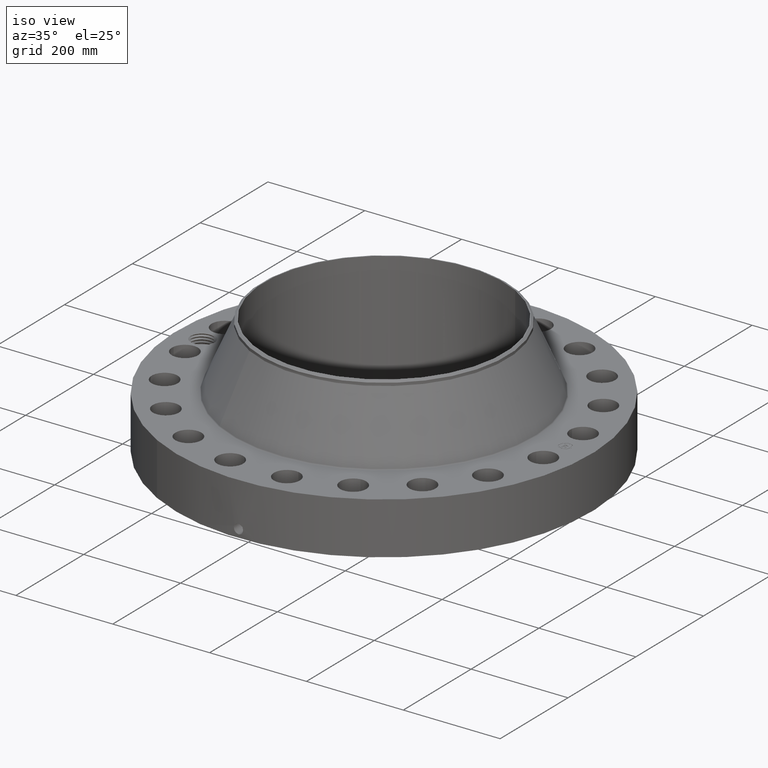
[diagram: clean part render]
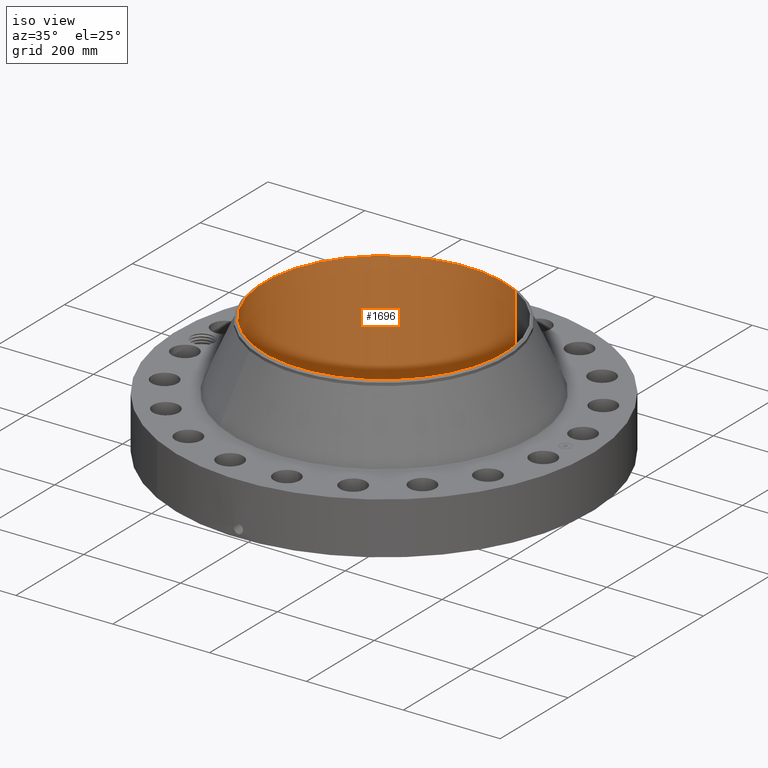
[diagram: same view with one face highlighted and labeled with its STEP entity id]
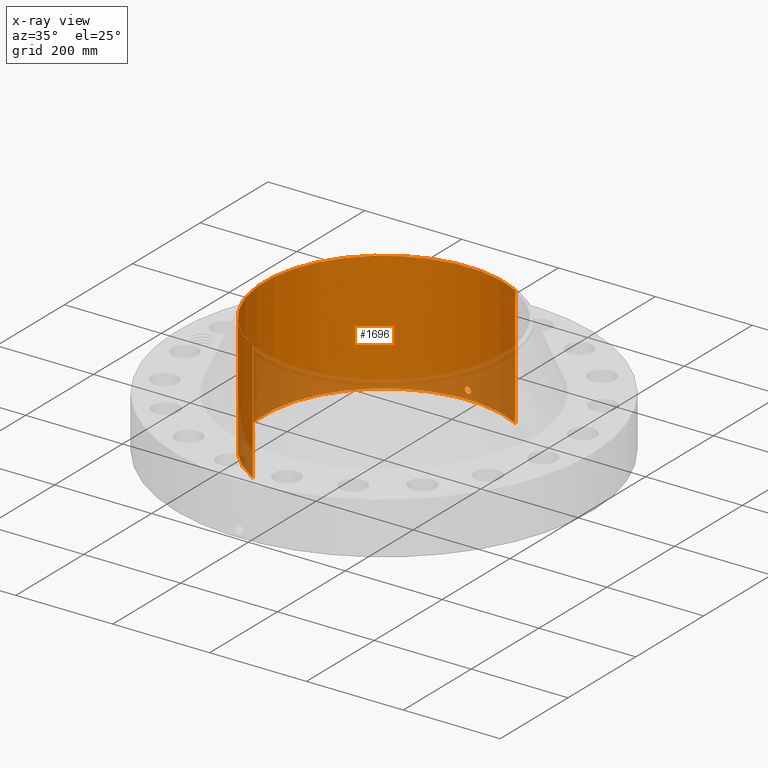
[diagram: x-ray of the same camera — body ghosted, the highlighted face saturated]
A machine part, iso view. The second image highlights one B-rep face of the part: STEP entity #1696.
The next image is the same camera in x-ray: the body ghosted, the highlighted face saturated — about 22% of this face is hidden behind the body in this view.
In plain terms, the highlighted cylindrical surface (partial cylindrical patch) has radius 247.65 mm, axis along (0, 0, -1).
Its self-contained STEP definition (entity closure, byte-faithful):
#271=AXIS2_PLACEMENT_3D('Circle Axis2P3D',#269,#270,$) ;
#1573=AXIS2_PLACEMENT_3D('Cylinder Axis2P3D',#1570,#1571,#1572) ;
#1645=AXIS2_PLACEMENT_3D('Circle Axis2P3D',#1643,#1644,$) ;
#264=CARTESIAN_POINT('Vertex',(4.67439900141,8.55642997847,0.250000000001)) ;
#266=CARTESIAN_POINT('Vertex',(-4.67439900141,-8.55642997847,0.250000000001)) ;
#269=CARTESIAN_POINT('Axis2P3D Location',(0.,0.,0.250000000001)) ;
#1570=CARTESIAN_POINT('Axis2P3D Location',(0.,0.,5.12500000002)) ;
#1579=CARTESIAN_POINT('Vertex',(4.67439900141,8.55642997847,10.)) ;
#1581=CARTESIAN_POINT('Vertex',(-4.67439900141,-8.55642997847,10.)) ;
#1584=CARTESIAN_POINT('Line Origine',(4.67439900141,8.55642997847,5.12500000002)) ;
#1589=CARTESIAN_POINT('Line Origine',(-4.67439900141,-8.55642997847,5.12500000002)) ;
#1643=CARTESIAN_POINT('Axis2P3D Location',(0.,0.,10.)) ;
#1655=CARTESIAN_POINT('Control Point',(0.219395640473,9.74753125431,1.05985638466)) ;
#1656=CARTESIAN_POINT('Control Point',(0.194442898533,9.74809288603,1.1055320724)) ;
#1657=CARTESIAN_POINT('Control Point',(0.15760471232,9.74884214693,1.14471231931)) ;
#1658=CARTESIAN_POINT('Control Point',(0.11110656742,9.74957085037,1.17324369377)) ;
#1659=CARTESIAN_POINT('Control Point',(0.0336712214616,9.75015062135,1.19588289358)) ;
#1660=CARTESIAN_POINT('Control Point',(-0.0446736669737,9.74995025307,1.18805601744)) ;
#1661=CARTESIAN_POINT('Control Point',(-0.0703041571042,9.74979470742,1.18204293626)) ;
#1662=CARTESIAN_POINT('Control Point',(-0.143961199228,9.74910736012,1.15420922551)) ;
#1663=CARTESIAN_POINT('Control Point',(-0.203249380185,9.74798546212,1.09949154099)) ;
#1664=CARTESIAN_POINT('Control Point',(-0.232213577159,9.74724968436,1.05325018231)) ;
#1665=CARTESIAN_POINT('Control Point',(-0.255841176916,9.74664491075,0.975104304377)) ;
#1666=CARTESIAN_POINT('Control Point',(-0.248281598031,9.74683824784,0.895741863763)) ;
#1667=CARTESIAN_POINT('Control Point',(-0.24204784955,9.74699998843,0.869181268112)) ;
#1668=CARTESIAN_POINT('Control Point',(-0.232314747779,9.74724047342,0.843791882651)) ;
#1669=CARTESIAN_POINT('Control Point',(-0.219395640473,9.74753125431,0.820143615352)) ;
#1670=CARTESIAN_POINT('Vertex',(0.219395640473,9.74753125431,1.05985638466)) ;
#1672=CARTESIAN_POINT('Vertex',(-0.219395640473,9.74753125431,0.820143615352)) ;
#1676=CARTESIAN_POINT('Control Point',(-0.219395640473,9.74753125431,0.820143615352)) ;
#1677=CARTESIAN_POINT('Control Point',(-0.194442898502,9.74809288603,0.774467927551)) ;
#1678=CARTESIAN_POINT('Control Point',(-0.157604712231,9.74884214693,0.735287680608)) ;
#1679=CARTESIAN_POINT('Control Point',(-0.111106567545,9.74957085037,0.706756306273)) ;
#1680=CARTESIAN_POINT('Control Point',(-0.0336712215248,9.75015062135,0.684117106419)) ;
#1681=CARTESIAN_POINT('Control Point',(0.0446736669739,9.74995025307,0.69194398257)) ;
#1682=CARTESIAN_POINT('Control Point',(0.0703041571041,9.74979470742,0.697957063749)) ;
#1683=CARTESIAN_POINT('Control Point',(0.14396119924,9.74910736012,0.725790774501)) ;
#1684=CARTESIAN_POINT('Control Point',(0.203249380205,9.74798546212,0.780508459036)) ;
#1685=CARTESIAN_POINT('Control Point',(0.232213577151,9.74724968436,0.826749817673)) ;
#1686=CARTESIAN_POINT('Control Point',(0.255841176905,9.74664491075,0.904895695576)) ;
#1687=CARTESIAN_POINT('Control Point',(0.248281598038,9.74683824784,0.984258136161)) ;
#1688=CARTESIAN_POINT('Control Point',(0.24204784952,9.74699998843,1.01081873197)) ;
#1689=CARTESIAN_POINT('Control Point',(0.232314747759,9.74724047342,1.03620811739)) ;
#1690=CARTESIAN_POINT('Control Point',(0.219395640473,9.74753125431,1.05985638466)) ;
#270=DIRECTION('Axis2P3D Direction',(0.,0.,-0.0393700787402)) ;
#1571=DIRECTION('Axis2P3D Direction',(0.,0.,-0.0393700787402)) ;
#1572=DIRECTION('Axis2P3D XDirection',(-0.0188750212049,-0.0345504945626,0.)) ;
#1585=DIRECTION('Vector Direction',(0.,0.,-0.0393700787402)) ;
#1590=DIRECTION('Vector Direction',(0.,0.,-0.0393700787402)) ;
#1644=DIRECTION('Axis2P3D Direction',(0.,0.,-0.0393700787402)) ;
#1586=VECTOR('Line Direction',#1585,0.0393700787402) ;
#1591=VECTOR('Line Direction',#1590,0.0393700787402) ;
#1649=ORIENTED_EDGE('',*,*,#1647,.F.) ;
#1650=ORIENTED_EDGE('',*,*,#1593,.T.) ;
#1651=ORIENTED_EDGE('',*,*,#273,.T.) ;
#1652=ORIENTED_EDGE('',*,*,#1588,.F.) ;
#1693=ORIENTED_EDGE('',*,*,#1674,.F.) ;
#1694=ORIENTED_EDGE('',*,*,#1691,.F.) ;
#1695=FACE_BOUND('',#1692,.T.) ;
#1696=ADVANCED_FACE('PartBody',(#1653,#1695),#1574,.F.) ;
#1654=B_SPLINE_CURVE_WITH_KNOTS('',5,(#1655,#1656,#1657,#1658,#1659,#1660,#1661,#1662,#1663,#1664,#1665,#1666,#1667,#1668,#1669),.UNSPECIFIED.,.F.,.U.,(6,3,3,3,6),(0.,9.348482356,14.0229320564,23.3729733308,28.2130845695),.UNSPECIFIED.) ;
#1675=B_SPLINE_CURVE_WITH_KNOTS('',5,(#1676,#1677,#1678,#1679,#1680,#1681,#1682,#1683,#1684,#1685,#1686,#1687,#1688,#1689,#1690),.UNSPECIFIED.,.F.,.U.,(6,3,3,3,6),(0.,9.34848236731,14.0229320677,23.3729733445,28.2130845757),.UNSPECIFIED.) ;
#272=CIRCLE('generated circle',#271,9.75000000004) ;
#1646=CIRCLE('generated circle',#1645,9.75000000004) ;
#1574=CYLINDRICAL_SURFACE('generated cylinder',#1573,9.75000000004) ;
#273=EDGE_CURVE('',#267,#265,#272,.T.) ;
#1588=EDGE_CURVE('',#1580,#265,#1587,.T.) ;
#1593=EDGE_CURVE('',#1582,#267,#1592,.T.) ;
#1647=EDGE_CURVE('',#1582,#1580,#1646,.T.) ;
#1674=EDGE_CURVE('',#1671,#1673,#1654,.T.) ;
#1691=EDGE_CURVE('',#1673,#1671,#1675,.T.) ;
#1648=EDGE_LOOP('',(#1649,#1650,#1651,#1652)) ;
#1692=EDGE_LOOP('',(#1693,#1694)) ;
#1653=FACE_OUTER_BOUND('',#1648,.T.) ;
#1587=LINE('Line',#1584,#1586) ;
#1592=LINE('Line',#1589,#1591) ;
#265=VERTEX_POINT('',#264) ;
#267=VERTEX_POINT('',#266) ;
#1580=VERTEX_POINT('',#1579) ;
#1582=VERTEX_POINT('',#1581) ;
#1671=VERTEX_POINT('',#1670) ;
#1673=VERTEX_POINT('',#1672) ;